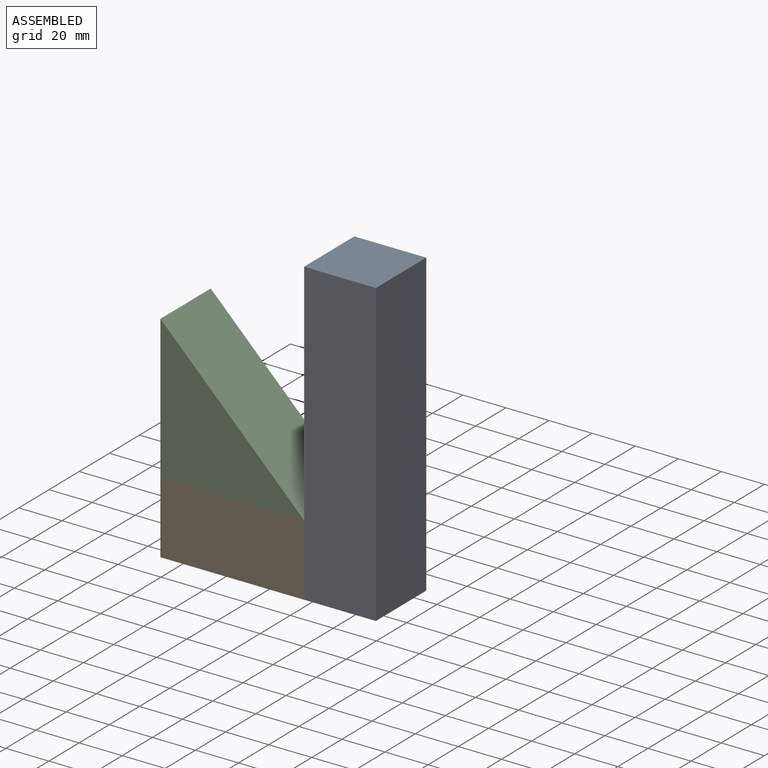
[diagram: assembled view]
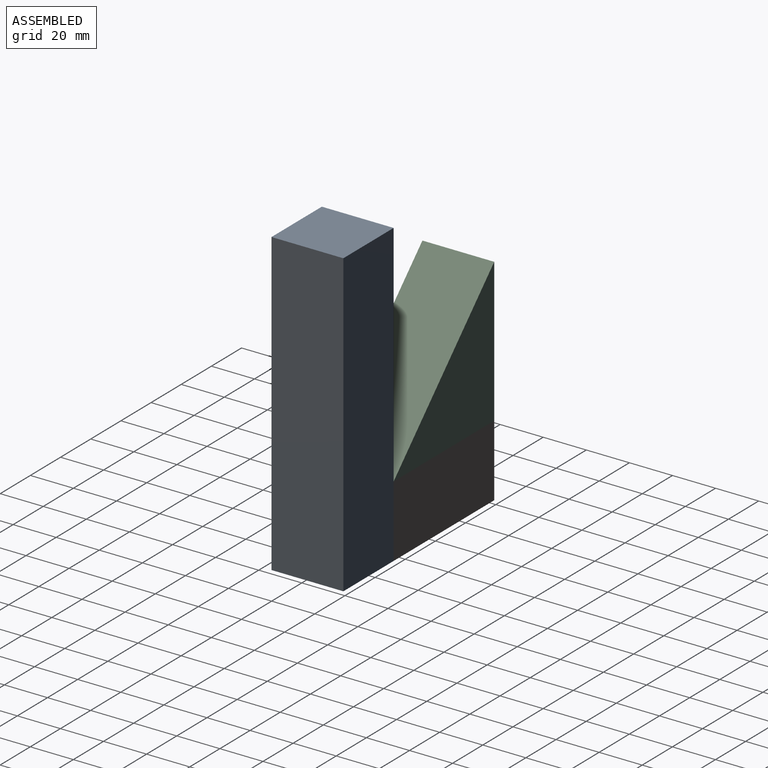
[diagram: assembled view, second angle]
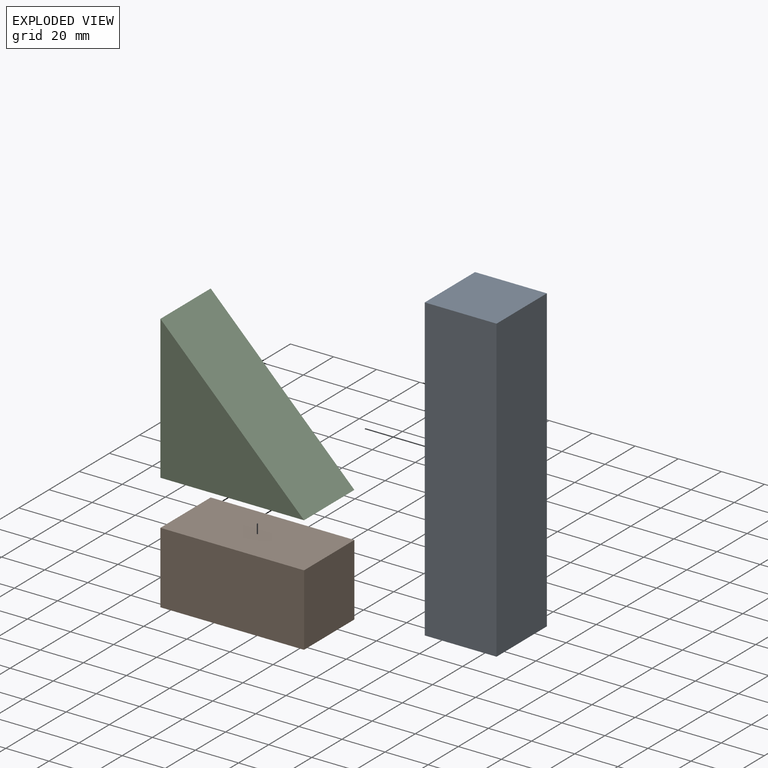
[diagram: exploded view]
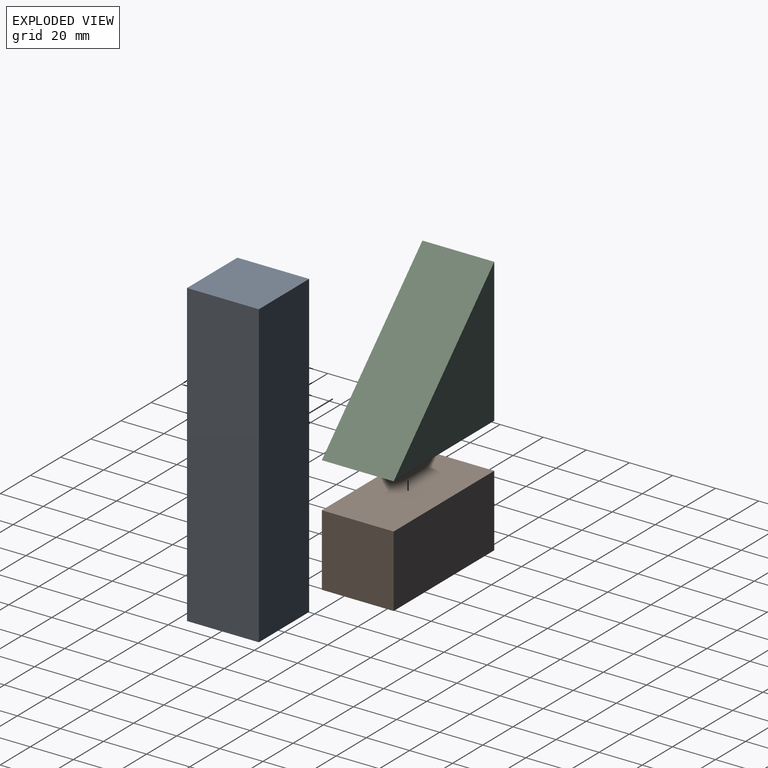
[diagram: exploded view, second angle]
ASSEMBLY  parts=3 mates=6
PART A: 6 faces, bbox 33.3x33.3x139.7 mm
  f0: plane 139.7x33.34mm, normal (-1,0,0), area 4657.2mm2, adj f1,f3,f4,f5
  f1: plane 33.34x33.34mm, normal (0,0,-1), area 1111.4mm2, adj f0,f2,f4,f5
  f2: plane 139.7x33.34mm, normal (1,0,0), area 4657.2mm2, adj f1,f3,f4,f5
  f3: plane 33.34x33.34mm, normal (0,0,1), area 1111.4mm2, adj f0,f2,f4,f5
  f4: plane 139.7x33.34mm, normal (0,-1,0), area 4657.2mm2, adj f0,f1,f2,f3
  f5: plane 139.7x33.34mm, normal (0,1,0), area 4657.2mm2, adj f0,f1,f2,f3
PART B: 6 faces, bbox 66.7x33.3x33.3 mm
  f0: plane 33.34x33.34mm, normal (-1,0,0), area 1111.4mm2, adj f1,f3,f4,f5
  f1: plane 66.68x33.34mm, normal (0,0,-1), area 2222.8mm2, adj f0,f2,f4,f5
  f2: plane 33.34x33.34mm, normal (1,0,0), area 1111.4mm2, adj f1,f3,f4,f5
  f3: plane 66.68x33.34mm, normal (0,0,1), area 2222.8mm2, adj f0,f2,f4,f5
  f4: plane 66.68x33.34mm, normal (0,-1,0), area 2222.8mm2, adj f0,f1,f2,f3
  f5: plane 66.68x33.34mm, normal (0,1,0), area 2222.8mm2, adj f0,f1,f2,f3
PART C: 5 faces, bbox 66.7x33.3x66.7 mm
  f0: plane 66.68x33.34mm, normal (-1,0,0), area 2222.8mm2, adj f1,f2,f3,f4
  f1: plane 66.68x33.34mm, normal (0,0,-1), area 2222.8mm2, adj f0,f2,f3,f4
  f2: plane 66.68x66.68mm, normal (0.71,0,0.71), area 3143.5mm2, adj f0,f1,f3,f4
  f3: plane 66.68x66.68mm, normal (0,-1,0), area 2222.8mm2, adj f0,f1,f2
  f4: plane 66.68x66.68mm, normal (0,1,0), area 2222.8mm2, adj f0,f1,f2
PLACE A rot(axis=(0,-1,0),180deg) t=(138.64,-133.65,213.72)mm
PLACE B rot(axis=(1,0,0),180deg) t=(38.63,-166.98,107.35)mm
PLACE C t=(38.63,-133.65,107.35)mm
MATE planar A.f3 <-> B.f3  axis (0,0,-1) through (121.97,-150.32,74.02)mm
MATE planar C.f4 <-> B.f4  axis (0,1,0) through (60.85,-133.65,129.58)mm
MATE planar A.f2 <-> B.f2  axis (-1,0,0) through (105.3,-150.32,143.87)mm
MATE planar B.f1 <-> C.f1  axis (0,0,1) through (71.96,-150.32,107.35)mm
MATE planar B.f5 <-> A.f4  axis (0,-1,0) through (71.96,-166.98,90.69)mm
MATE planar C.f0 <-> B.f0  axis (-1,0,0) through (38.63,-150.32,140.69)mm
